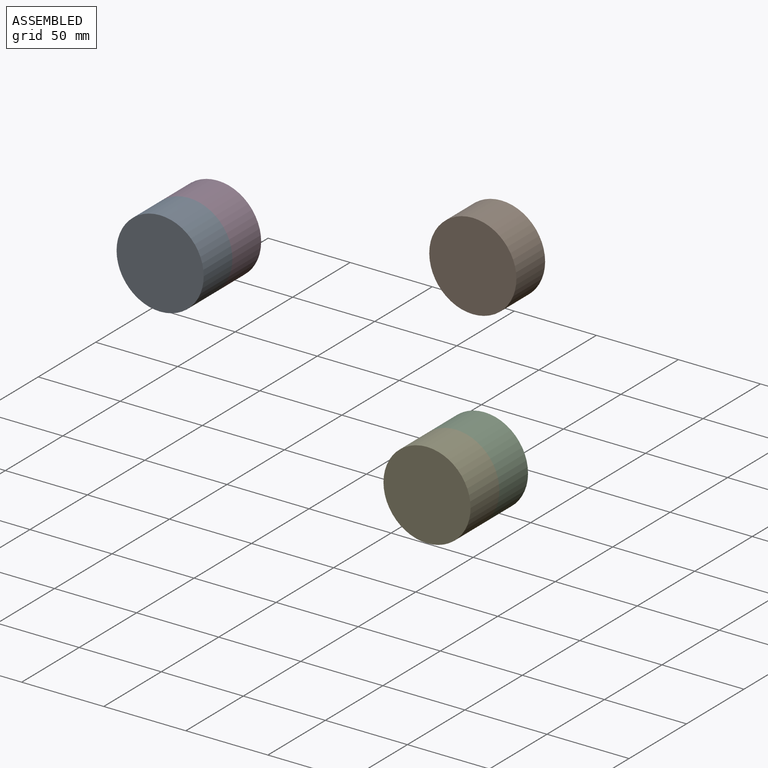
[diagram: assembled view]
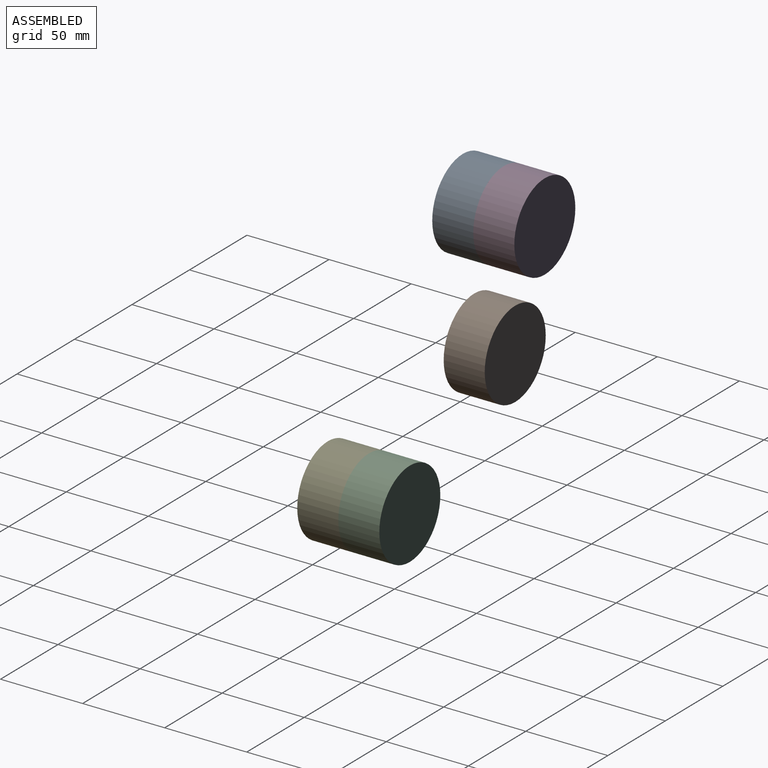
[diagram: assembled view, second angle]
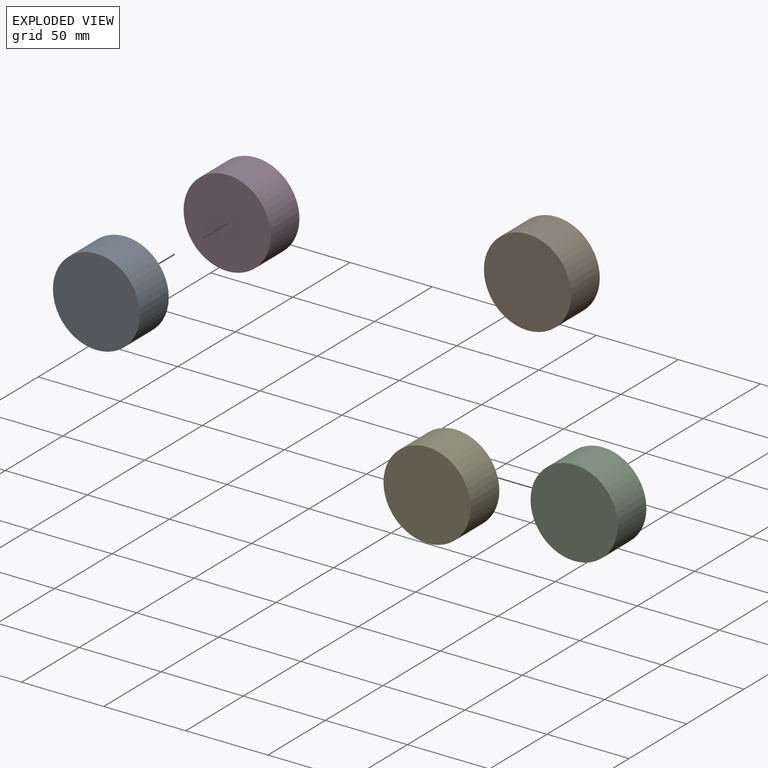
[diagram: exploded view]
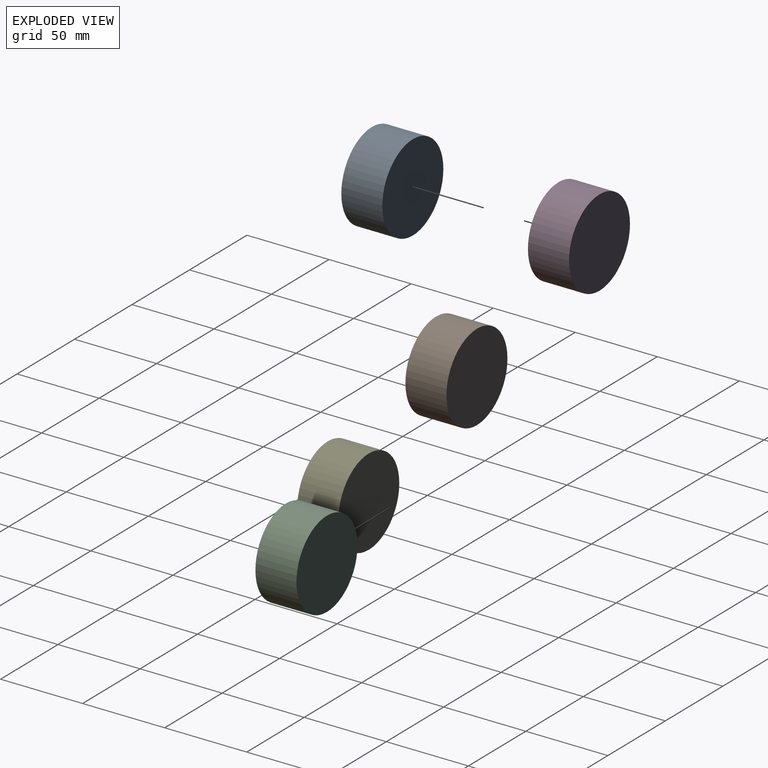
[diagram: exploded view, second angle]
ASSEMBLY  parts=5 mates=2
PART A: 3 faces, bbox 53.1x25x53.1 mm
  f0: cylinder r=26.54mm len=53.08mm, axis (0,1,0), area 4168.5mm2, adj f1,f2
  f1: plane 53.08x53.08mm, normal (0,-1,0), area 2212.5mm2, adj f0
  f2: plane 53.08x53.08mm, normal (0,1,0), area 2212.5mm2, adj f0
PART B: same geometry as A
PART C: same geometry as A
PART D: same geometry as A
PART E: same geometry as A
PLACE A rot(axis=(1,0,0),180deg) t=(-66.02,-28.14,96.53)mm
PLACE B t=(58.54,91.04,-36.21)mm
PLACE C t=(81.73,43.07,-128.25)mm
PLACE D t=(-66.02,21.86,-32.11)mm
PLACE E rot(axis=(1,0,0),180deg) t=(81.73,-6.93,0.38)mm
MATE revolute A.f0 <-> D.f0  axis (0,1,0) through (-20.98,-3.14,32.21)mm
MATE revolute E.f0 <-> C.f0  axis (0,1,0) through (126.77,18.07,-63.94)mm
